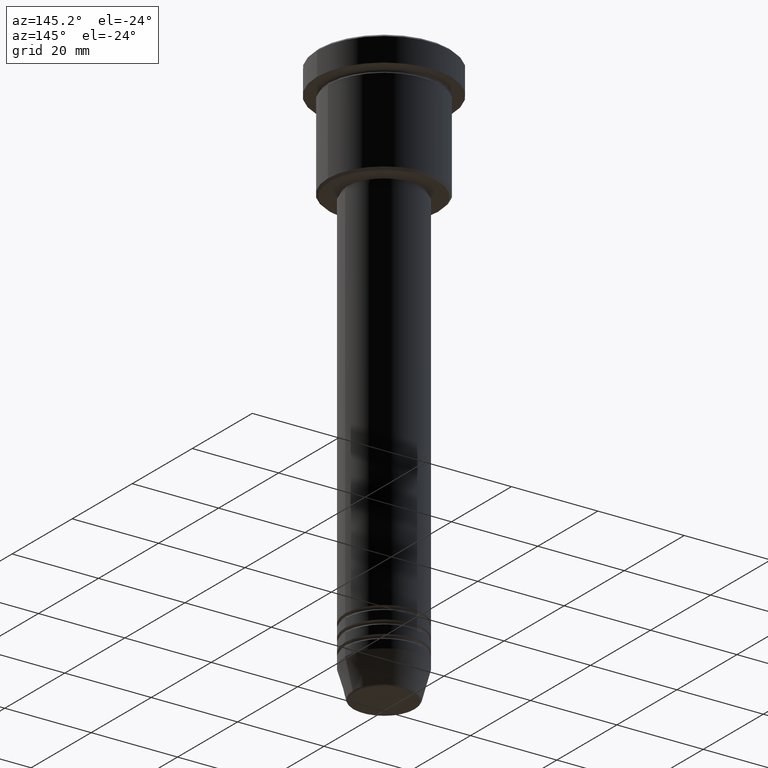
[diagram: clean part render]
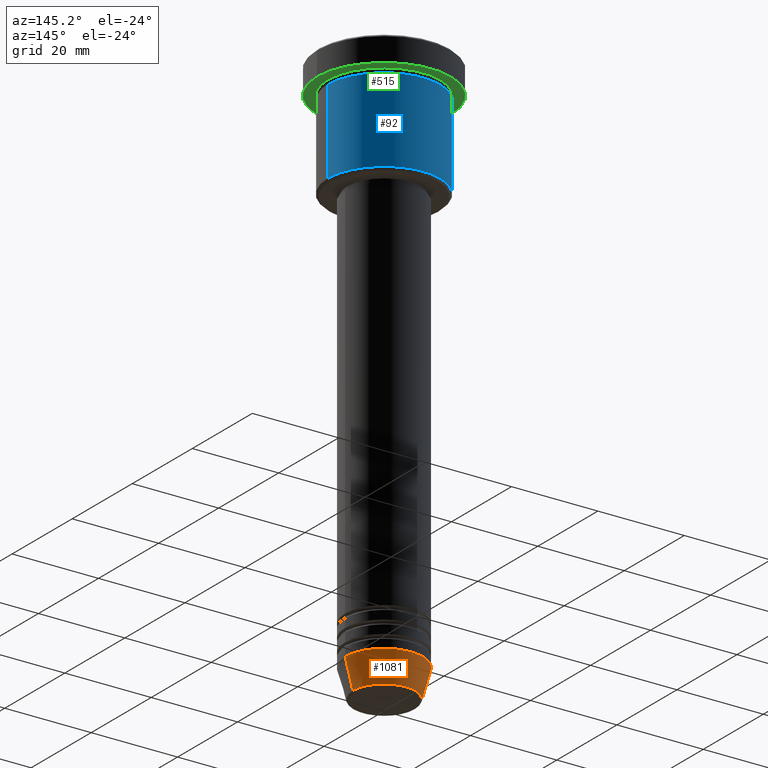
[diagram: same view with three faces highlighted in distinct colors, each labeled with its STEP entity id]
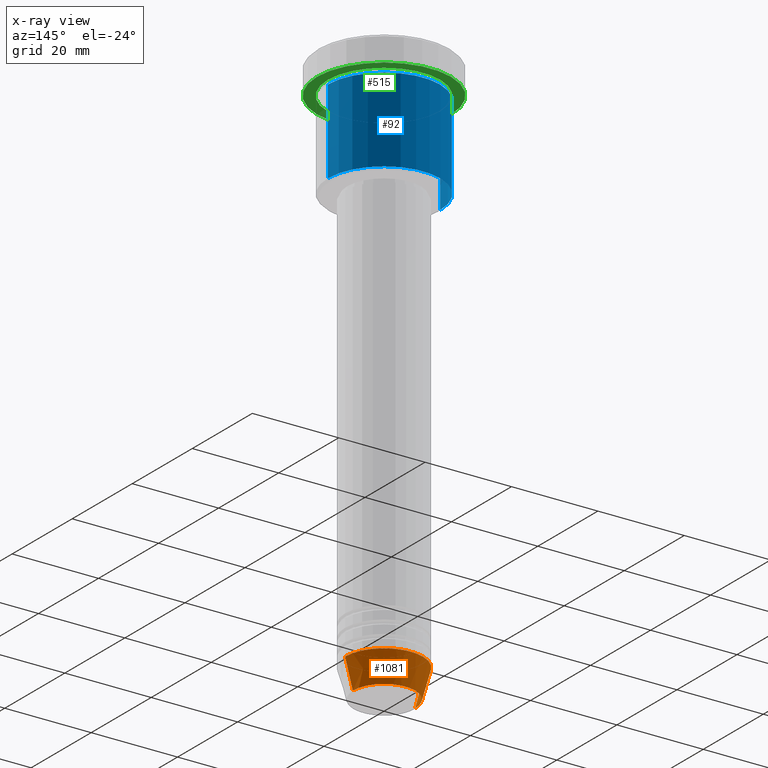
[diagram: x-ray of the same camera — body ghosted, the three highlighted faces saturated]
A machine part, auxiliary view with three faces highlighted in distinct colors.
The next image is the same camera in x-ray (body ghosted, the three faces saturated) — at least one of them is partly hidden behind the body in this view.
Their STEP definitions:

[orange] entity #1081 — the highlighted conical surface has half-angle 15 deg.
#1 = CONICAL_SURFACE ( 'NONE', #530, 9.000000000000000000, 0.2617993877991500740 ) ;
#18 = VERTEX_POINT ( 'NONE', #224 ) ;
#28 = EDGE_CURVE ( 'NONE', #712, #661, #524, .T. ) ;
#32 = DIRECTION ( 'NONE',  ( -0.000000000000000000, -0.000000000000000000, 1.000000000000000000 ) ) ;
#91 = AXIS2_PLACEMENT_3D ( 'NONE', #926, #327, #964 ) ;
#131 = VECTOR ( 'NONE', #860, 1000.000000000000000 ) ;
#186 = EDGE_CURVE ( 'NONE', #214, #712, #542, .T. ) ;
#214 = VERTEX_POINT ( 'NONE', #560 ) ;
#224 = CARTESIAN_POINT ( 'NONE',  ( -7.223655072137189492, 9.934123627281765110E-16, -131.6294095225512706 ) ) ;
#229 = VECTOR ( 'NONE', #829, 1000.000000000000000 ) ;
#312 = DIRECTION ( 'NONE',  ( 1.000000000000000000, 0.000000000000000000, 0.000000000000000000 ) ) ;
#327 = DIRECTION ( 'NONE',  ( -0.000000000000000000, -0.000000000000000000, 1.000000000000000000 ) ) ;
#328 = AXIS2_PLACEMENT_3D ( 'NONE', #499, #32, #312 ) ;
#363 = CARTESIAN_POINT ( 'NONE',  ( -9.000000000000000000, 1.102182119232617714E-15, -125.0000000000000000 ) ) ;
#385 = DIRECTION ( 'NONE',  ( 1.000000000000000000, 0.000000000000000000, 0.000000000000000000 ) ) ;
#456 = EDGE_CURVE ( 'NONE', #214, #18, #976, .T. ) ;
#465 = DIRECTION ( 'NONE',  ( -0.000000000000000000, -0.000000000000000000, 1.000000000000000000 ) ) ;
#499 = CARTESIAN_POINT ( 'NONE',  ( 0.000000000000000000, 0.000000000000000000, -125.0000000000000000 ) ) ;
#524 = CIRCLE ( 'NONE', #328, 9.000000000000000000 ) ;
#530 = AXIS2_PLACEMENT_3D ( 'NONE', #929, #465, #385 ) ;
#542 = LINE ( 'NONE', #641, #229 ) ;
#560 = CARTESIAN_POINT ( 'NONE',  ( 7.223655072137188604, 0.000000000000000000, -131.6294095225512706 ) ) ;
#566 = CARTESIAN_POINT ( 'NONE',  ( 9.000000000000000000, 0.000000000000000000, -125.0000000000000000 ) ) ;
#641 = CARTESIAN_POINT ( 'NONE',  ( 9.000000000000000000, 0.000000000000000000, -125.0000000000000000 ) ) ;
#661 = VERTEX_POINT ( 'NONE', #363 ) ;
#712 = VERTEX_POINT ( 'NONE', #566 ) ;
#723 = ORIENTED_EDGE ( 'NONE', *, *, #28, .F. ) ;
#799 = EDGE_CURVE ( 'NONE', #18, #661, #935, .T. ) ;
#829 = DIRECTION ( 'NONE',  ( 0.2588190451025213501, 0.000000000000000000, 0.9659258262890680902 ) ) ;
#860 = DIRECTION ( 'NONE',  ( -0.2588190451025213501, 3.169619151431772337E-17, 0.9659258262890680902 ) ) ;
#871 = ORIENTED_EDGE ( 'NONE', *, *, #456, .T. ) ;
#926 = CARTESIAN_POINT ( 'NONE',  ( 0.000000000000000000, 0.000000000000000000, -131.6294095225512706 ) ) ;
#929 = CARTESIAN_POINT ( 'NONE',  ( 0.000000000000000000, 0.000000000000000000, -125.0000000000000000 ) ) ;
#934 = ORIENTED_EDGE ( 'NONE', *, *, #186, .F. ) ;
#935 = LINE ( 'NONE', #1036, #131 ) ;
#964 = DIRECTION ( 'NONE',  ( 1.000000000000000000, 0.000000000000000000, 0.000000000000000000 ) ) ;
#976 = CIRCLE ( 'NONE', #91, 7.223655072137188604 ) ;
#1005 = EDGE_LOOP ( 'NONE', ( #871, #1109, #723, #934 ) ) ;
#1036 = CARTESIAN_POINT ( 'NONE',  ( -9.000000000000000000, 1.102182119232617714E-15, -125.0000000000000000 ) ) ;
#1079 = FACE_OUTER_BOUND ( 'NONE', #1005, .T. ) ;
#1081 = ADVANCED_FACE ( 'NONE', ( #1079 ), #1, .T. ) ;
#1109 = ORIENTED_EDGE ( 'NONE', *, *, #799, .T. ) ;

[blue] entity #92 — the highlighted cylindrical surface (partial cylindrical patch) has radius 13 mm, axis along (-0, -0, 1).
#5 = ORIENTED_EDGE ( 'NONE', *, *, #21, .F. ) ;
#13 = ORIENTED_EDGE ( 'NONE', *, *, #635, .T. ) ;
#19 = DIRECTION ( 'NONE',  ( -1.000000000000000000, 0.000000000000000000, 0.000000000000000000 ) ) ;
#21 = EDGE_CURVE ( 'NONE', #991, #940, #1031, .T. ) ;
#37 = AXIS2_PLACEMENT_3D ( 'NONE', #800, #870, #243 ) ;
#92 = ADVANCED_FACE ( 'NONE', ( #514 ), #347, .T. ) ;
#117 = DIRECTION ( 'NONE',  ( -0.000000000000000000, -0.000000000000000000, 1.000000000000000000 ) ) ;
#128 = AXIS2_PLACEMENT_3D ( 'NONE', #554, #180, #19 ) ;
#180 = DIRECTION ( 'NONE',  ( -0.000000000000000000, -0.000000000000000000, 1.000000000000000000 ) ) ;
#231 = AXIS2_PLACEMENT_3D ( 'NONE', #1023, #461, #376 ) ;
#243 = DIRECTION ( 'NONE',  ( 1.000000000000000000, 0.000000000000000000, 0.000000000000000000 ) ) ;
#252 = CARTESIAN_POINT ( 'NONE',  ( 13.00000000000000000, 0.000000000000000000, -6.999999999999995559 ) ) ;
#284 = CARTESIAN_POINT ( 'NONE',  ( -13.00000000000000000, 1.592040838891559095E-15, 0.000000000000000000 ) ) ;
#310 = VECTOR ( 'NONE', #598, 1000.000000000000000 ) ;
#341 = CARTESIAN_POINT ( 'NONE',  ( -13.00000000000000000, 1.592040838891559095E-15, -26.49999999999997513 ) ) ;
#343 = ORIENTED_EDGE ( 'NONE', *, *, #418, .T. ) ;
#347 = CYLINDRICAL_SURFACE ( 'NONE', #37, 13.00000000000000000 ) ;
#376 = DIRECTION ( 'NONE',  ( 1.000000000000000000, 0.000000000000000000, 0.000000000000000000 ) ) ;
#418 = EDGE_CURVE ( 'NONE', #581, #738, #513, .T. ) ;
#447 = CARTESIAN_POINT ( 'NONE',  ( 13.00000000000000000, 0.000000000000000000, -26.49999999999997513 ) ) ;
#461 = DIRECTION ( 'NONE',  ( -0.000000000000000000, -0.000000000000000000, 1.000000000000000000 ) ) ;
#513 = LINE ( 'NONE', #284, #310 ) ;
#514 = FACE_OUTER_BOUND ( 'NONE', #654, .T. ) ;
#554 = CARTESIAN_POINT ( 'NONE',  ( 0.000000000000000000, 0.000000000000000000, -26.49999999999997513 ) ) ;
#581 = VERTEX_POINT ( 'NONE', #341 ) ;
#590 = CARTESIAN_POINT ( 'NONE',  ( 13.00000000000000000, 0.000000000000000000, 0.000000000000000000 ) ) ;
#598 = DIRECTION ( 'NONE',  ( -0.000000000000000000, -0.000000000000000000, 1.000000000000000000 ) ) ;
#621 = EDGE_CURVE ( 'NONE', #940, #738, #663, .T. ) ;
#635 = EDGE_CURVE ( 'NONE', #991, #581, #1183, .T. ) ;
#654 = EDGE_LOOP ( 'NONE', ( #13, #343, #766, #5 ) ) ;
#663 = CIRCLE ( 'NONE', #231, 13.00000000000000000 ) ;
#738 = VERTEX_POINT ( 'NONE', #925 ) ;
#766 = ORIENTED_EDGE ( 'NONE', *, *, #621, .F. ) ;
#800 = CARTESIAN_POINT ( 'NONE',  ( 0.000000000000000000, 0.000000000000000000, 0.000000000000000000 ) ) ;
#846 = VECTOR ( 'NONE', #117, 1000.000000000000000 ) ;
#870 = DIRECTION ( 'NONE',  ( -0.000000000000000000, -0.000000000000000000, 1.000000000000000000 ) ) ;
#925 = CARTESIAN_POINT ( 'NONE',  ( -13.00000000000000000, 1.592040838891559095E-15, -6.999999999999995559 ) ) ;
#940 = VERTEX_POINT ( 'NONE', #252 ) ;
#991 = VERTEX_POINT ( 'NONE', #447 ) ;
#1023 = CARTESIAN_POINT ( 'NONE',  ( 0.000000000000000000, 0.000000000000000000, -6.999999999999995559 ) ) ;
#1031 = LINE ( 'NONE', #590, #846 ) ;
#1183 = CIRCLE ( 'NONE', #128, 13.00000000000000000 ) ;

[green] entity #515 — the highlighted planar face has unit normal (0, 0, -1).
#8 = CARTESIAN_POINT ( 'NONE',  ( 0.000000000000000000, 0.000000000000000000, -5.999999999999995559 ) ) ;
#58 = DIRECTION ( 'NONE',  ( 0.000000000000000000, 0.000000000000000000, -1.000000000000000000 ) ) ;
#84 = DIRECTION ( 'NONE',  ( -0.000000000000000000, -0.000000000000000000, 1.000000000000000000 ) ) ;
#220 = EDGE_LOOP ( 'NONE', ( #672, #963 ) ) ;
#235 = CARTESIAN_POINT ( 'NONE',  ( 0.000000000000000000, 0.000000000000000000, -5.999999999999995559 ) ) ;
#273 = AXIS2_PLACEMENT_3D ( 'NONE', #235, #688, #946 ) ;
#280 = DIRECTION ( 'NONE',  ( 1.000000000000000000, 0.000000000000000000, 0.000000000000000000 ) ) ;
#282 = DIRECTION ( 'NONE',  ( -0.000000000000000000, -0.000000000000000000, 1.000000000000000000 ) ) ;
#288 = CARTESIAN_POINT ( 'NONE',  ( -13.00000000000000000, 0.000000000000000000, -5.999999999999994671 ) ) ;
#295 = EDGE_LOOP ( 'NONE', ( #574, #403 ) ) ;
#358 = DIRECTION ( 'NONE',  ( -1.000000000000000000, 0.000000000000000000, -0.000000000000000000 ) ) ;
#374 = CARTESIAN_POINT ( 'NONE',  ( 0.000000000000000000, 0.000000000000000000, -5.999999999999995559 ) ) ;
#382 = CARTESIAN_POINT ( 'NONE',  ( -15.50000000000000000, 1.898202538678397557E-15, -5.999999999999995559 ) ) ;
#403 = ORIENTED_EDGE ( 'NONE', *, *, #877, .T. ) ;
#446 = VERTEX_POINT ( 'NONE', #878 ) ;
#448 = CIRCLE ( 'NONE', #273, 13.00000000000000000 ) ;
#486 = CIRCLE ( 'NONE', #792, 13.00000000000000000 ) ;
#506 = AXIS2_PLACEMENT_3D ( 'NONE', #620, #981, #628 ) ;
#515 = ADVANCED_FACE ( 'NONE', ( #541, #897 ), #969, .T. ) ;
#541 = FACE_BOUND ( 'NONE', #295, .T. ) ;
#574 = ORIENTED_EDGE ( 'NONE', *, *, #759, .T. ) ;
#620 = CARTESIAN_POINT ( 'NONE',  ( 0.000000000000000000, 0.000000000000000000, -5.999999999999995559 ) ) ;
#628 = DIRECTION ( 'NONE',  ( 1.000000000000000000, 0.000000000000000000, 0.000000000000000000 ) ) ;
#647 = AXIS2_PLACEMENT_3D ( 'NONE', #374, #84, #280 ) ;
#650 = VERTEX_POINT ( 'NONE', #382 ) ;
#666 = DIRECTION ( 'NONE',  ( -1.000000000000000000, 0.000000000000000000, 0.000000000000000000 ) ) ;
#672 = ORIENTED_EDGE ( 'NONE', *, *, #1026, .F. ) ;
#678 = CARTESIAN_POINT ( 'NONE',  ( 15.50000000000000000, 0.000000000000000000, -5.999999999999995559 ) ) ;
#688 = DIRECTION ( 'NONE',  ( -0.000000000000000000, -0.000000000000000000, 1.000000000000000000 ) ) ;
#711 = CARTESIAN_POINT ( 'NONE',  ( 0.000000000000000000, 15.50000000000000000, -5.999999999999995559 ) ) ;
#728 = VERTEX_POINT ( 'NONE', #288 ) ;
#759 = EDGE_CURVE ( 'NONE', #728, #446, #486, .T. ) ;
#792 = AXIS2_PLACEMENT_3D ( 'NONE', #8, #282, #666 ) ;
#877 = EDGE_CURVE ( 'NONE', #446, #728, #448, .T. ) ;
#878 = CARTESIAN_POINT ( 'NONE',  ( 13.00000000000000000, 1.592040838891559095E-15, -5.999999999999994671 ) ) ;
#897 = FACE_OUTER_BOUND ( 'NONE', #220, .T. ) ;
#937 = VERTEX_POINT ( 'NONE', #678 ) ;
#946 = DIRECTION ( 'NONE',  ( -1.000000000000000000, 0.000000000000000000, 0.000000000000000000 ) ) ;
#963 = ORIENTED_EDGE ( 'NONE', *, *, #1111, .F. ) ;
#969 = PLANE ( 'NONE',  #1013 ) ;
#981 = DIRECTION ( 'NONE',  ( -0.000000000000000000, -0.000000000000000000, 1.000000000000000000 ) ) ;
#1013 = AXIS2_PLACEMENT_3D ( 'NONE', #711, #58, #358 ) ;
#1026 = EDGE_CURVE ( 'NONE', #937, #650, #1088, .T. ) ;
#1088 = CIRCLE ( 'NONE', #506, 15.50000000000000000 ) ;
#1111 = EDGE_CURVE ( 'NONE', #650, #937, #1149, .T. ) ;
#1149 = CIRCLE ( 'NONE', #647, 15.50000000000000000 ) ;